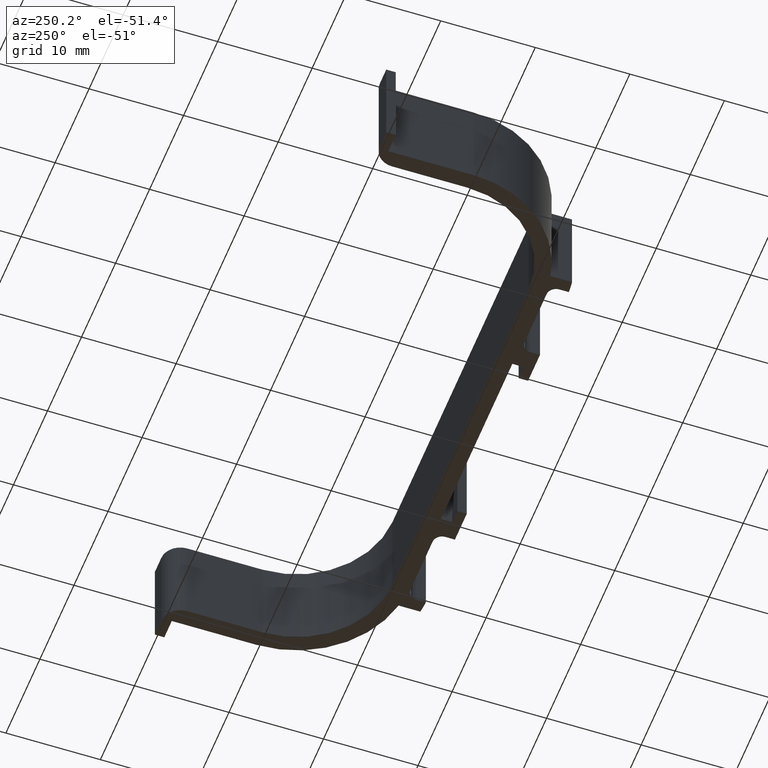
[diagram: clean part render]
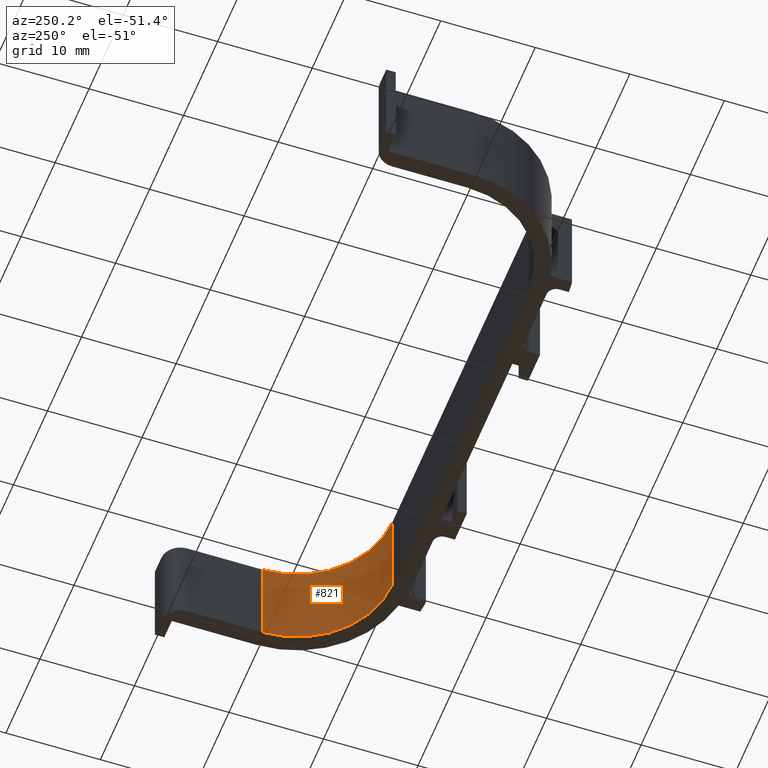
[diagram: same view with one face highlighted and labeled with its STEP entity id]
A machine part, auxiliary view. The second image highlights one B-rep face of the part: STEP entity #821.
In plain terms, the highlighted cylindrical surface (partial cylindrical patch) has radius 10.1 mm, axis along (0, 0, -1).
Its self-contained STEP definition (entity closure, byte-faithful):
#69=FACE_OUTER_BOUND('',#111,.T.);
#111=EDGE_LOOP('',(#713,#714,#715,#716));
#207=LINE('',#1343,#303);
#208=LINE('',#1345,#304);
#303=VECTOR('',#1081,10.);
#304=VECTOR('',#1084,10.);
#332=CIRCLE('',#854,10.1);
#335=CIRCLE('',#861,10.1);
#383=VERTEX_POINT('',#1216);
#384=VERTEX_POINT('',#1218);
#390=VERTEX_POINT('',#1238);
#391=VERTEX_POINT('',#1240);
#464=EDGE_CURVE('',#383,#384,#332,.T.);
#475=EDGE_CURVE('',#390,#391,#335,.T.);
#527=EDGE_CURVE('',#383,#391,#207,.T.);
#528=EDGE_CURVE('',#384,#390,#208,.T.);
#713=ORIENTED_EDGE('',*,*,#475,.F.);
#714=ORIENTED_EDGE('',*,*,#528,.F.);
#715=ORIENTED_EDGE('',*,*,#464,.F.);
#716=ORIENTED_EDGE('',*,*,#527,.T.);
#792=CYLINDRICAL_SURFACE('',#889,10.1);
#821=ADVANCED_FACE('',(#69),#792,.F.);
#854=AXIS2_PLACEMENT_3D('',#1219,#963,#964);
#861=AXIS2_PLACEMENT_3D('',#1241,#985,#986);
#889=AXIS2_PLACEMENT_3D('',#1346,#1085,#1086);
#963=DIRECTION('center_axis',(0.,0.,-1.));
#964=DIRECTION('ref_axis',(0.,1.,0.));
#985=DIRECTION('center_axis',(0.,0.,1.));
#986=DIRECTION('ref_axis',(0.,1.,0.));
#1081=DIRECTION('',(0.,0.,-1.));
#1084=DIRECTION('',(0.,0.,-1.));
#1085=DIRECTION('center_axis',(0.,0.,-1.));
#1086=DIRECTION('ref_axis',(0.,1.,0.));
#1216=CARTESIAN_POINT('',(30.1,10.,5.));
#1218=CARTESIAN_POINT('',(20.,-0.0999999999999956,5.));
#1219=CARTESIAN_POINT('Origin',(20.,10.,5.));
#1238=CARTESIAN_POINT('',(20.,-0.0999999999999956,-5.));
#1240=CARTESIAN_POINT('',(30.1,10.,-5.));
#1241=CARTESIAN_POINT('Origin',(20.,10.,-5.));
#1343=CARTESIAN_POINT('',(30.1,10.,5.));
#1345=CARTESIAN_POINT('',(20.,-0.0999999999999956,5.));
#1346=CARTESIAN_POINT('Origin',(20.,10.,5.));